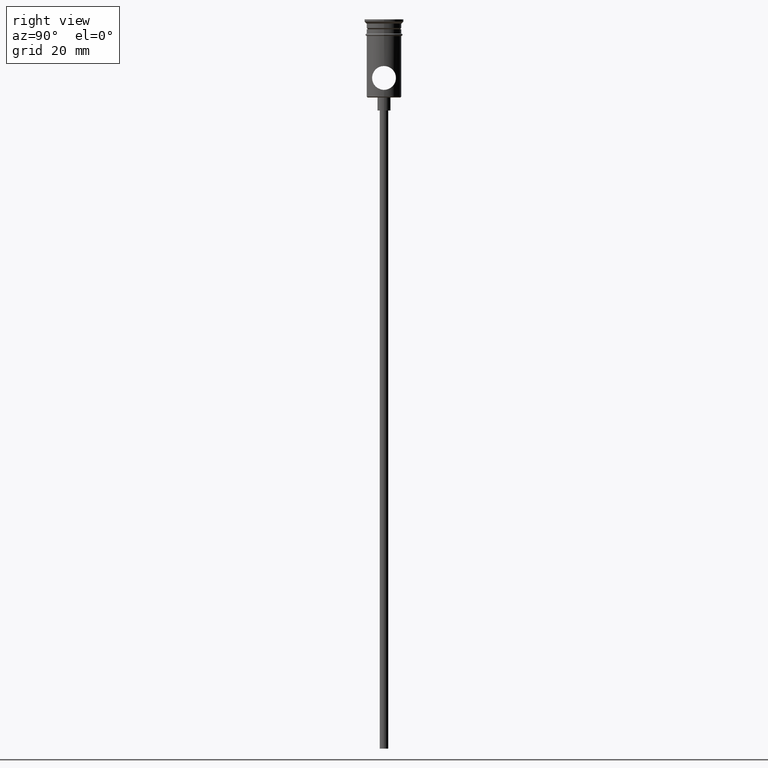
[diagram: clean part render]
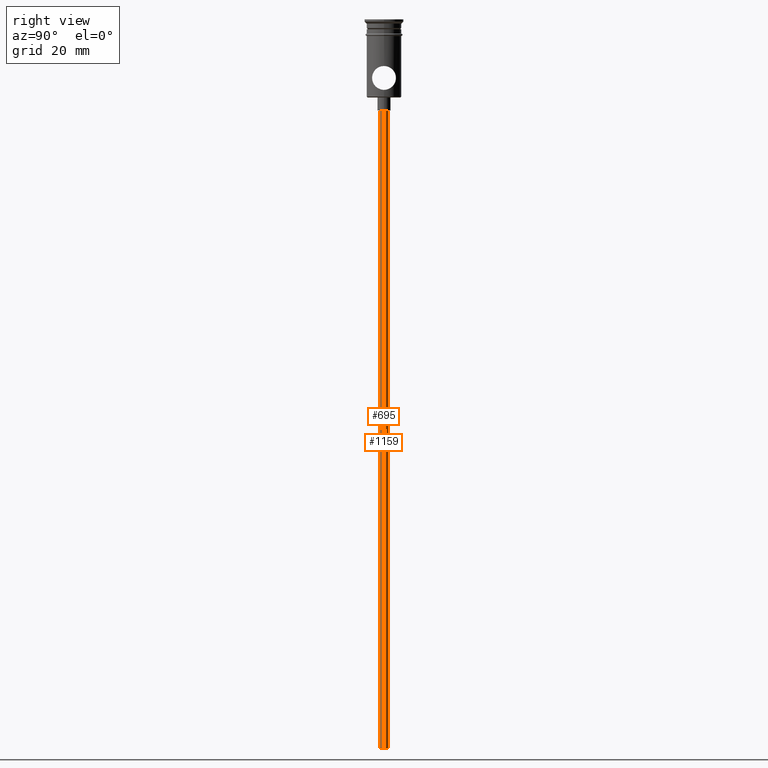
[diagram: same view with one multi-face feature highlighted, each face labeled with its STEP entity id]
A machine part, right view. The highlighted faces form ONE feature: a constant-radius fillet chain: 2 tangent blend faces with common blend radius 1 mm. The faces share edges in the B-rep.
Their STEP definitions:
[1] entity #695 (Cylinder):
#55 = VECTOR ( 'NONE', #900, 1000.000000000000000 ) ;
#108 = DIRECTION ( 'NONE',  ( -0.000000000000000000, -0.000000000000000000, 1.000000000000000000 ) ) ;
#144 = DIRECTION ( 'NONE',  ( -1.000000000000000000, 0.000000000000000000, 0.000000000000000000 ) ) ;
#190 = DIRECTION ( 'NONE',  ( -0.000000000000000000, -0.000000000000000000, 1.000000000000000000 ) ) ;
#214 = AXIS2_PLACEMENT_3D ( 'NONE', #565, #463, #1222 ) ;
#215 = VECTOR ( 'NONE', #108, 1000.000000000000000 ) ;
#232 = VERTEX_POINT ( 'NONE', #643 ) ;
#356 = LINE ( 'NONE', #776, #215 ) ;
#388 = ORIENTED_EDGE ( 'NONE', *, *, #518, .F. ) ;
#463 = DIRECTION ( 'NONE',  ( 0.000000000000000000, 0.000000000000000000, -1.000000000000000000 ) ) ;
#474 = CARTESIAN_POINT ( 'NONE',  ( 0.9999999999999997780, 0.000000000000000000, -167.9999999999999716 ) ) ;
#487 = AXIS2_PLACEMENT_3D ( 'NONE', #1166, #190, #1285 ) ;
#518 = EDGE_CURVE ( 'NONE', #1252, #721, #769, .T. ) ;
#565 = CARTESIAN_POINT ( 'NONE',  ( 0.000000000000000000, 0.000000000000000000, -167.9999999999999716 ) ) ;
#642 = AXIS2_PLACEMENT_3D ( 'NONE', #1025, #678, #144 ) ;
#643 = CARTESIAN_POINT ( 'NONE',  ( 0.9999999999999997780, 0.000000000000000000, -20.99999999999999645 ) ) ;
#653 = ORIENTED_EDGE ( 'NONE', *, *, #662, .T. ) ;
#662 = EDGE_CURVE ( 'NONE', #232, #950, #939, .T. ) ;
#678 = DIRECTION ( 'NONE',  ( 0.000000000000000000, 0.000000000000000000, -1.000000000000000000 ) ) ;
#685 = CARTESIAN_POINT ( 'NONE',  ( -0.9999999999999997780, 1.224646799147352961E-16, -20.99999999999999645 ) ) ;
#695 = ADVANCED_FACE ( 'NONE', ( #944 ), #1391, .T. ) ;
#721 = VERTEX_POINT ( 'NONE', #1271 ) ;
#739 = EDGE_LOOP ( 'NONE', ( #775, #388, #1355, #653 ) ) ;
#769 = CIRCLE ( 'NONE', #214, 0.9999999999999997780 ) ;
#775 = ORIENTED_EDGE ( 'NONE', *, *, #846, .F. ) ;
#776 = CARTESIAN_POINT ( 'NONE',  ( -0.9999999999999997780, 1.224646799147352961E-16, -167.9999999999999716 ) ) ;
#846 = EDGE_CURVE ( 'NONE', #721, #950, #356, .T. ) ;
#900 = DIRECTION ( 'NONE',  ( -0.000000000000000000, -0.000000000000000000, 1.000000000000000000 ) ) ;
#939 = CIRCLE ( 'NONE', #642, 0.9999999999999997780 ) ;
#944 = FACE_OUTER_BOUND ( 'NONE', #739, .T. ) ;
#950 = VERTEX_POINT ( 'NONE', #685 ) ;
#1025 = CARTESIAN_POINT ( 'NONE',  ( 0.000000000000000000, 0.000000000000000000, -20.99999999999999645 ) ) ;
#1166 = CARTESIAN_POINT ( 'NONE',  ( 0.000000000000000000, 0.000000000000000000, -167.9999999999999716 ) ) ;
#1222 = DIRECTION ( 'NONE',  ( -1.000000000000000000, 0.000000000000000000, 0.000000000000000000 ) ) ;
#1252 = VERTEX_POINT ( 'NONE', #474 ) ;
#1271 = CARTESIAN_POINT ( 'NONE',  ( -0.9999999999999997780, 1.224646799147352961E-16, -167.9999999999999716 ) ) ;
#1283 = EDGE_CURVE ( 'NONE', #1252, #232, #1346, .T. ) ;
#1285 = DIRECTION ( 'NONE',  ( 1.000000000000000000, 0.000000000000000000, 0.000000000000000000 ) ) ;
#1340 = CARTESIAN_POINT ( 'NONE',  ( 0.9999999999999997780, 0.000000000000000000, -167.9999999999999716 ) ) ;
#1346 = LINE ( 'NONE', #1340, #55 ) ;
#1355 = ORIENTED_EDGE ( 'NONE', *, *, #1283, .T. ) ;
#1391 = CYLINDRICAL_SURFACE ( 'NONE', #487, 0.9999999999999997780 ) ;
[2] entity #1159 (Cylinder):
#55 = VECTOR ( 'NONE', #900, 1000.000000000000000 ) ;
#108 = DIRECTION ( 'NONE',  ( -0.000000000000000000, -0.000000000000000000, 1.000000000000000000 ) ) ;
#119 = CIRCLE ( 'NONE', #1236, 0.9999999999999997780 ) ;
#198 = DIRECTION ( 'NONE',  ( 0.000000000000000000, 0.000000000000000000, -1.000000000000000000 ) ) ;
#215 = VECTOR ( 'NONE', #108, 1000.000000000000000 ) ;
#232 = VERTEX_POINT ( 'NONE', #643 ) ;
#271 = CARTESIAN_POINT ( 'NONE',  ( 0.000000000000000000, 0.000000000000000000, -20.99999999999999645 ) ) ;
#304 = DIRECTION ( 'NONE',  ( -0.000000000000000000, -0.000000000000000000, 1.000000000000000000 ) ) ;
#356 = LINE ( 'NONE', #776, #215 ) ;
#376 = AXIS2_PLACEMENT_3D ( 'NONE', #942, #304, #722 ) ;
#394 = FACE_OUTER_BOUND ( 'NONE', #1345, .T. ) ;
#430 = CARTESIAN_POINT ( 'NONE',  ( 0.000000000000000000, 0.000000000000000000, -167.9999999999999716 ) ) ;
#474 = CARTESIAN_POINT ( 'NONE',  ( 0.9999999999999997780, 0.000000000000000000, -167.9999999999999716 ) ) ;
#488 = AXIS2_PLACEMENT_3D ( 'NONE', #430, #198, #1050 ) ;
#616 = EDGE_CURVE ( 'NONE', #950, #232, #119, .T. ) ;
#621 = CIRCLE ( 'NONE', #488, 0.9999999999999997780 ) ;
#643 = CARTESIAN_POINT ( 'NONE',  ( 0.9999999999999997780, 0.000000000000000000, -20.99999999999999645 ) ) ;
#685 = CARTESIAN_POINT ( 'NONE',  ( -0.9999999999999997780, 1.224646799147352961E-16, -20.99999999999999645 ) ) ;
#721 = VERTEX_POINT ( 'NONE', #1271 ) ;
#722 = DIRECTION ( 'NONE',  ( 1.000000000000000000, 0.000000000000000000, 0.000000000000000000 ) ) ;
#752 = ORIENTED_EDGE ( 'NONE', *, *, #616, .T. ) ;
#776 = CARTESIAN_POINT ( 'NONE',  ( -0.9999999999999997780, 1.224646799147352961E-16, -167.9999999999999716 ) ) ;
#817 = CYLINDRICAL_SURFACE ( 'NONE', #376, 0.9999999999999997780 ) ;
#846 = EDGE_CURVE ( 'NONE', #721, #950, #356, .T. ) ;
#900 = DIRECTION ( 'NONE',  ( -0.000000000000000000, -0.000000000000000000, 1.000000000000000000 ) ) ;
#904 = DIRECTION ( 'NONE',  ( 0.000000000000000000, 0.000000000000000000, -1.000000000000000000 ) ) ;
#919 = ORIENTED_EDGE ( 'NONE', *, *, #846, .T. ) ;
#942 = CARTESIAN_POINT ( 'NONE',  ( 0.000000000000000000, 0.000000000000000000, -167.9999999999999716 ) ) ;
#950 = VERTEX_POINT ( 'NONE', #685 ) ;
#952 = ORIENTED_EDGE ( 'NONE', *, *, #1079, .F. ) ;
#1050 = DIRECTION ( 'NONE',  ( -1.000000000000000000, 0.000000000000000000, 0.000000000000000000 ) ) ;
#1067 = ORIENTED_EDGE ( 'NONE', *, *, #1283, .F. ) ;
#1079 = EDGE_CURVE ( 'NONE', #721, #1252, #621, .T. ) ;
#1154 = DIRECTION ( 'NONE',  ( -1.000000000000000000, 0.000000000000000000, 0.000000000000000000 ) ) ;
#1159 = ADVANCED_FACE ( 'NONE', ( #394 ), #817, .T. ) ;
#1236 = AXIS2_PLACEMENT_3D ( 'NONE', #271, #904, #1154 ) ;
#1252 = VERTEX_POINT ( 'NONE', #474 ) ;
#1271 = CARTESIAN_POINT ( 'NONE',  ( -0.9999999999999997780, 1.224646799147352961E-16, -167.9999999999999716 ) ) ;
#1283 = EDGE_CURVE ( 'NONE', #1252, #232, #1346, .T. ) ;
#1340 = CARTESIAN_POINT ( 'NONE',  ( 0.9999999999999997780, 0.000000000000000000, -167.9999999999999716 ) ) ;
#1345 = EDGE_LOOP ( 'NONE', ( #952, #919, #752, #1067 ) ) ;
#1346 = LINE ( 'NONE', #1340, #55 ) ;